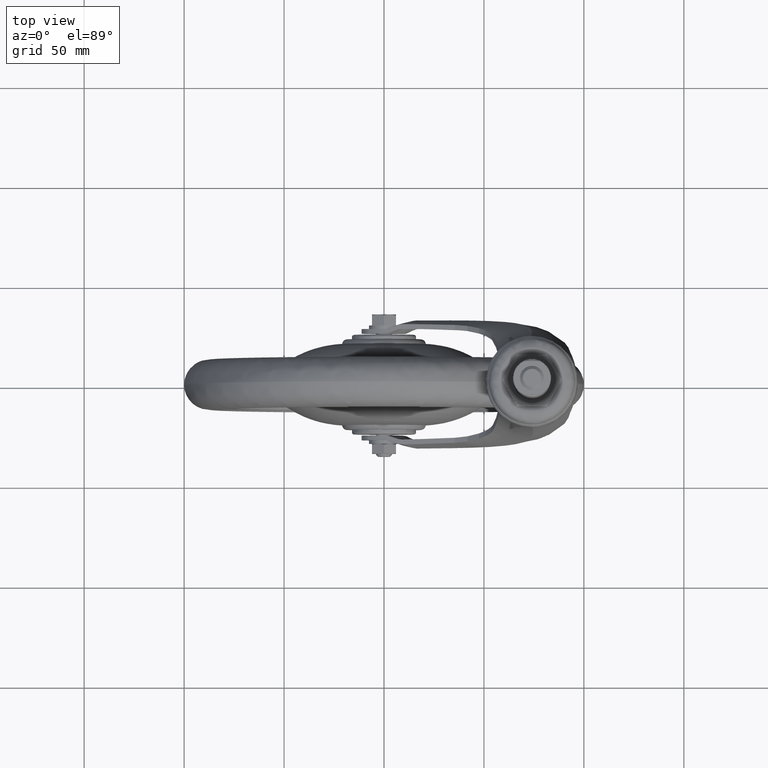
[diagram: clean part render]
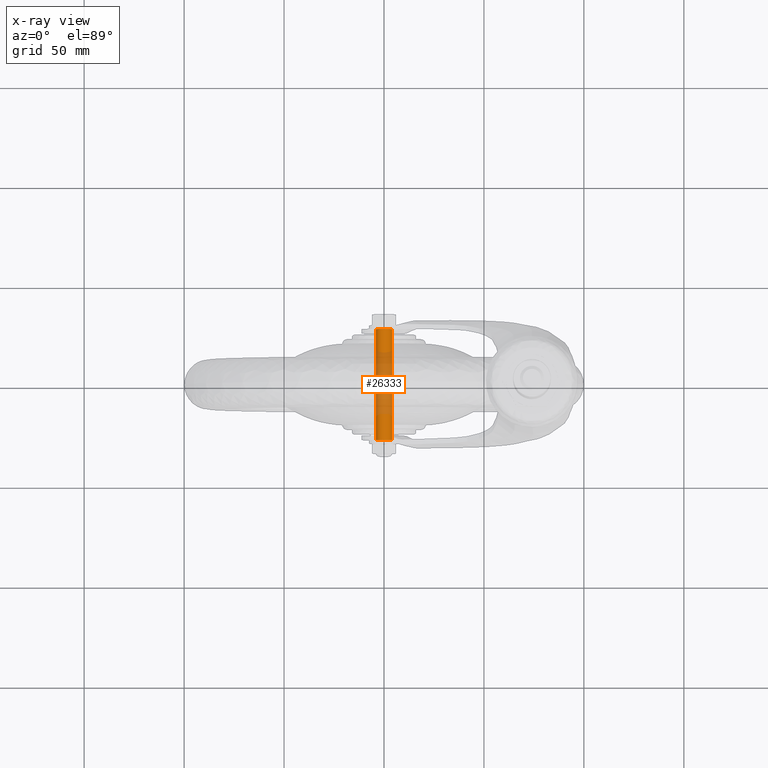
[diagram: x-ray — body ghosted, one internal face saturated and labeled with its STEP entity id]
A machine part, top view, then the same camera in x-ray: the body is ghosted and one INTERNAL B-rep face — a face not visible from any outside direction — is saturated and labeled: STEP entity #26333.
In plain terms, the highlighted face is a freeform B-spline surface patch.
Its self-contained STEP definition (entity closure, byte-faithful):
#26080=CARTESIAN_POINT('',(3.999847692240754,-27.800000000000001,-0.034906143818996));
#26081=VERTEX_POINT('',#26080);
#26095=CARTESIAN_POINT('',(0.0,-27.800000000000001,4.0));
#26096=VERTEX_POINT('',#26095);
#26097=CARTESIAN_POINT('',(3.999847692240755,-27.799999999999994,-0.034906143818996));
#26098=CARTESIAN_POINT('',(4.000000000000000,-27.800000000000004,-0.017453404195609));
#26099=CARTESIAN_POINT('',(4.0,-27.800000000000001,0.0));
#26100=CARTESIAN_POINT('',(4.000000000000000,-27.799999999999997,4.000000000000000));
#26101=CARTESIAN_POINT('',(0.0,-27.800000000000001,4.0));
#26109=(BOUNDED_CURVE()B_SPLINE_CURVE(2,(#26097,#26098,#26099,#26100,#26101),.UNSPECIFIED.,.F.,.U.)B_SPLINE_CURVE_WITH_KNOTS((3,2,3),(0.248460105584623,0.250000000000000,0.500000000000000),.UNSPECIFIED.)CURVE()GEOMETRIC_REPRESENTATION_ITEM()RATIONAL_B_SPLINE_CURVE((0.996414027914360,0.998195901472189,1.0,0.707106781186548,1.0))REPRESENTATION_ITEM(''));
#26110=EDGE_CURVE('',#26081,#26096,#26109,.T.);
#26112=CARTESIAN_POINT('',(-3.999847692240754,-27.800000000000001,0.034906143818996));
#26113=VERTEX_POINT('',#26112);
#26114=CARTESIAN_POINT('',(0.0,-27.800000000000001,4.0));
#26115=CARTESIAN_POINT('',(-3.965244840570136,-27.800000000000004,4.0));
#26116=CARTESIAN_POINT('',(-3.999847692240754,-27.799999999999994,0.034906143818997));
#26124=(BOUNDED_CURVE()B_SPLINE_CURVE(2,(#26114,#26115,#26116),.UNSPECIFIED.,.F.,.U.)B_SPLINE_CURVE_WITH_KNOTS((3,3),(0.500000000000000,0.748460105584623),.UNSPECIFIED.)CURVE()GEOMETRIC_REPRESENTATION_ITEM()RATIONAL_B_SPLINE_CURVE((1.0,0.708910879714359,0.996414027914360))REPRESENTATION_ITEM(''));
#26125=EDGE_CURVE('',#26096,#26113,#26124,.T.);
#26267=CARTESIAN_POINT('',(-3.999847692256684,-29.190000000000001,0.034906141993496));
#26268=CARTESIAN_POINT('',(-3.964941550263188,-29.190000000000008,4.034753834250179));
#26269=CARTESIAN_POINT('',(0.034906141993496,-29.190000000000001,3.999847692256684));
#26270=CARTESIAN_POINT('',(4.034753834250179,-29.190000000000008,3.964941550263188));
#26271=CARTESIAN_POINT('',(3.999847692256684,-29.190000000000001,-0.034906141993496));
#26272=CARTESIAN_POINT('',(-3.999847692256684,29.224750000000011,0.034906141993496));
#26273=CARTESIAN_POINT('',(-3.964941550263188,29.224750000000004,4.034753834250179));
#26274=CARTESIAN_POINT('',(0.034906141993496,29.224750000000011,3.999847692256684));
#26275=CARTESIAN_POINT('',(4.034753834250179,29.224750000000004,3.964941550263188));
#26276=CARTESIAN_POINT('',(3.999847692256684,29.224750000000011,-0.034906141993496));
#26284=(BOUNDED_SURFACE()B_SPLINE_SURFACE(2,1,((#26267,#26272),(#26268,#26273),(#26269,#26274),(#26270,#26275),(#26271,#26276)),.UNSPECIFIED.,.F.,.F.,.U.)B_SPLINE_SURFACE_WITH_KNOTS((3,2,3),(2,2),(0.0,6.627416997969519,13.254833995939039),(0.0,58.414750000000012),.UNSPECIFIED.)GEOMETRIC_REPRESENTATION_ITEM()RATIONAL_B_SPLINE_SURFACE(((1.0,1.0),(0.707106781186548,0.707106781186548),(1.0,1.0),(0.707106781186548,0.707106781186548),(1.0,1.0)))REPRESENTATION_ITEM('')SURFACE());
#26285=ORIENTED_EDGE('',*,*,#26125,.F.);
#26286=ORIENTED_EDGE('',*,*,#26110,.F.);
#26287=CARTESIAN_POINT('',(3.999847692239936,27.800000000000001,-0.034906143912673));
#26288=VERTEX_POINT('',#26287);
#26289=CARTESIAN_POINT('',(3.999847692240754,-27.800000000000001,-0.034906143818996));
#26290=CARTESIAN_POINT('',(3.999847692239936,27.800000000000001,-0.034906143912673));
#26291=QUASI_UNIFORM_CURVE('',1,(#26289,#26290),.UNSPECIFIED.,.F.,.U.);
#26292=EDGE_CURVE('',#26081,#26288,#26291,.T.);
#26293=ORIENTED_EDGE('',*,*,#26292,.T.);
#26294=CARTESIAN_POINT('',(0.0,27.800000000000001,4.0));
#26295=VERTEX_POINT('',#26294);
#26296=CARTESIAN_POINT('',(0.0,27.800000000000001,4.0));
#26297=CARTESIAN_POINT('',(4.000000000000000,27.799999999999997,4.000000000000000));
#26298=CARTESIAN_POINT('',(4.0,27.800000000000001,0.0));
#26299=CARTESIAN_POINT('',(4.0,27.799999999999990,-0.017453404242450));
#26300=CARTESIAN_POINT('',(3.999847692239936,27.799999999999990,-0.034906143912673));
#26308=(BOUNDED_CURVE()B_SPLINE_CURVE(2,(#26296,#26297,#26298,#26299,#26300),.UNSPECIFIED.,.F.,.U.)B_SPLINE_CURVE_WITH_KNOTS((3,2,3),(0.500000000000000,0.750000000000000,0.751539894419503),.UNSPECIFIED.)CURVE()GEOMETRIC_REPRESENTATION_ITEM()RATIONAL_B_SPLINE_CURVE((1.0,0.707106781186548,1.0,0.998195901467356,0.996414027904813))REPRESENTATION_ITEM(''));
#26309=EDGE_CURVE('',#26295,#26288,#26308,.T.);
#26310=ORIENTED_EDGE('',*,*,#26309,.F.);
#26311=CARTESIAN_POINT('',(-3.999847692239936,27.800000000000001,0.034906143912673));
#26312=VERTEX_POINT('',#26311);
#26313=CARTESIAN_POINT('',(-3.999847692239936,27.799999999999990,0.034906143912673));
#26314=CARTESIAN_POINT('',(-3.965244840477266,27.800000000000008,4.0));
#26315=CARTESIAN_POINT('',(0.0,27.800000000000001,4.0));
#26323=(BOUNDED_CURVE()B_SPLINE_CURVE(2,(#26313,#26314,#26315),.UNSPECIFIED.,.F.,.U.)B_SPLINE_CURVE_WITH_KNOTS((3,3),(0.251539894419503,0.500000000000000),.UNSPECIFIED.)CURVE()GEOMETRIC_REPRESENTATION_ITEM()RATIONAL_B_SPLINE_CURVE((0.996414027904813,0.708910879719192,1.0))REPRESENTATION_ITEM(''));
#26324=EDGE_CURVE('',#26312,#26295,#26323,.T.);
#26325=ORIENTED_EDGE('',*,*,#26324,.F.);
#26326=CARTESIAN_POINT('',(-3.999847692240754,-27.800000000000001,0.034906143818996));
#26327=CARTESIAN_POINT('',(-3.999847692239936,27.800000000000001,0.034906143912673));
#26328=QUASI_UNIFORM_CURVE('',1,(#26326,#26327),.UNSPECIFIED.,.F.,.U.);
#26329=EDGE_CURVE('',#26113,#26312,#26328,.T.);
#26330=ORIENTED_EDGE('',*,*,#26329,.F.);
#26331=EDGE_LOOP('',(#26285,#26286,#26293,#26310,#26325,#26330));
#26332=FACE_OUTER_BOUND('',#26331,.T.);
#26333=ADVANCED_FACE('',(#26332),#26284,.T.);